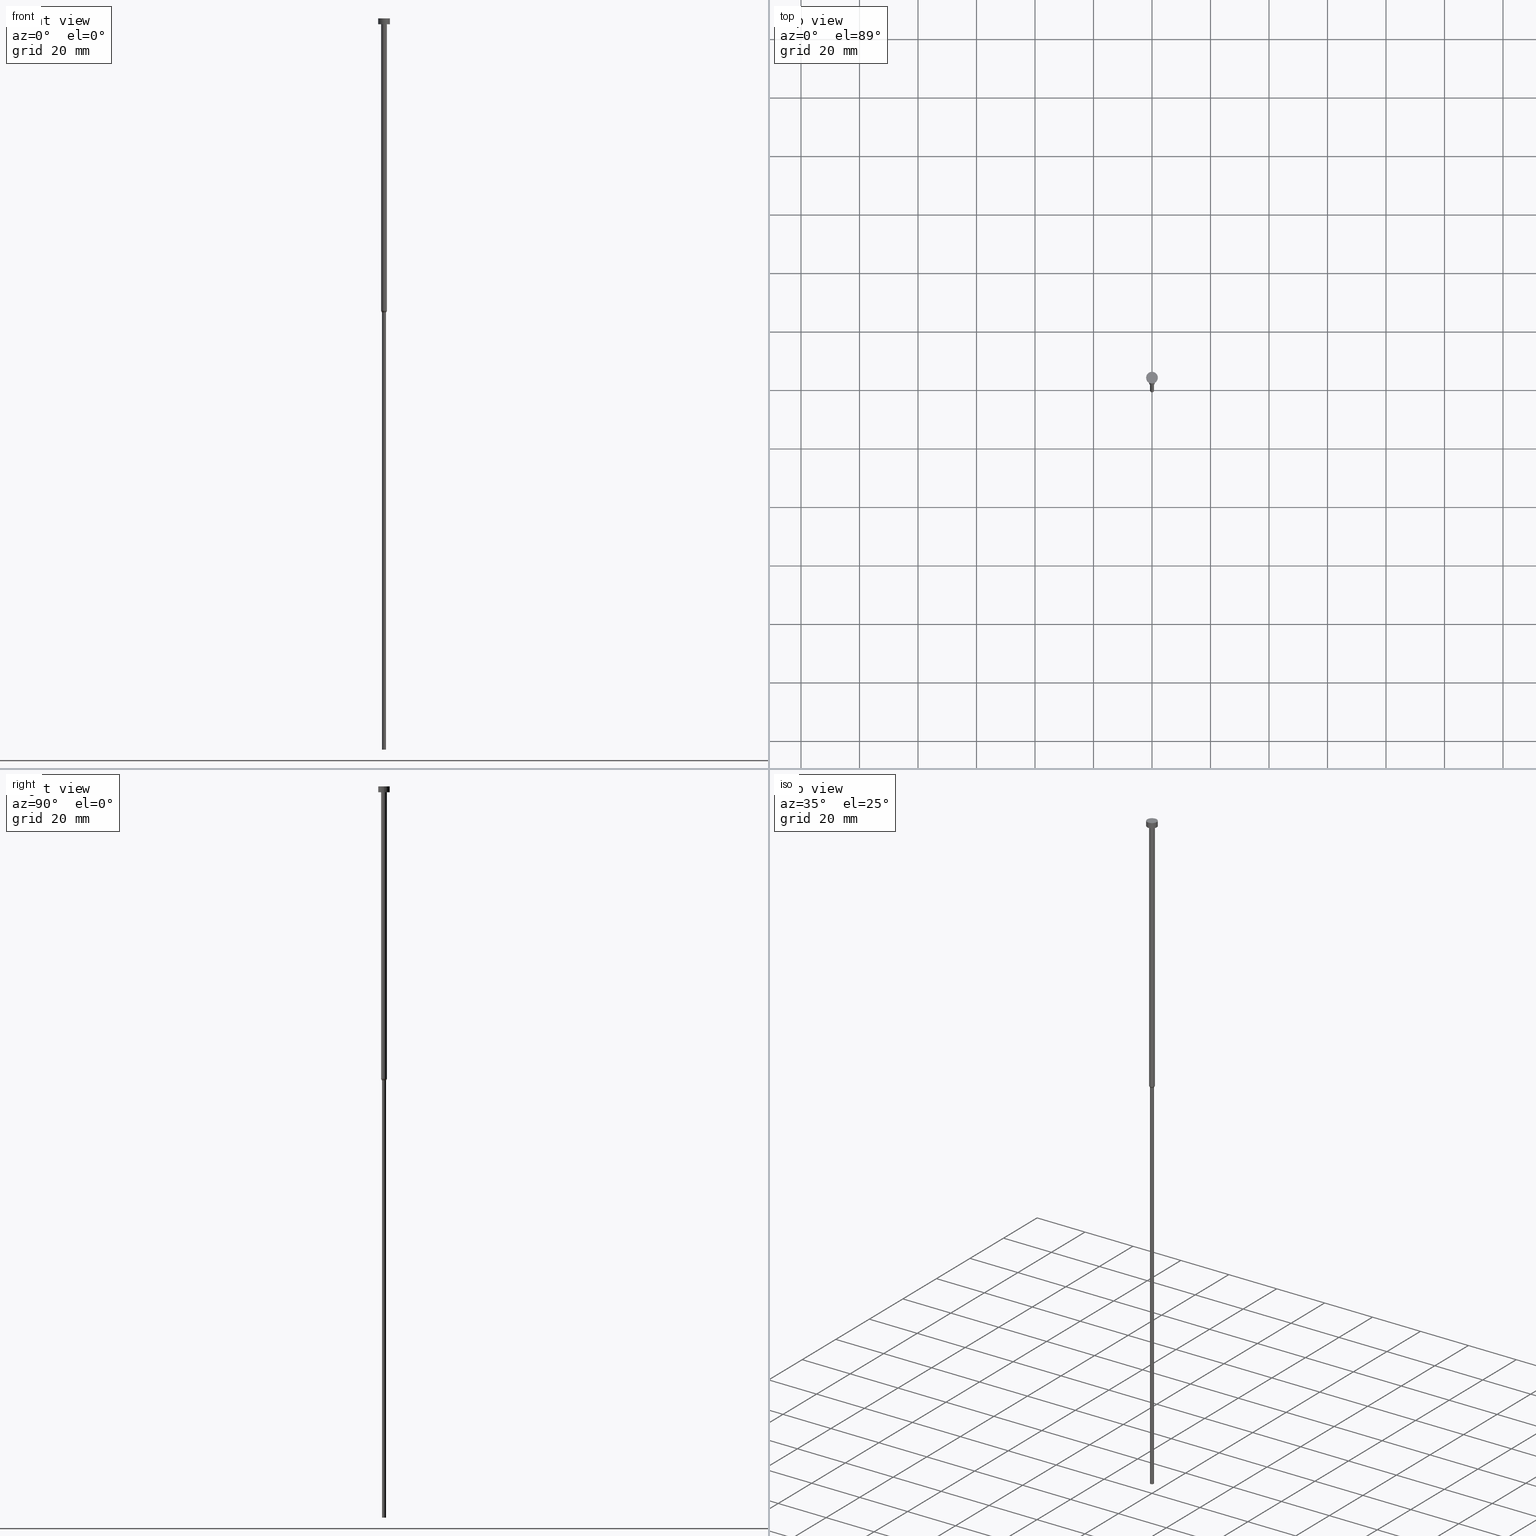
[diagram: canonical four-view strip — front | top / right | iso, engineering-drawing reading convention]
A machine part, canonical four-view strip (front | top / right | iso — engineering-drawing reading convention). The complete STEP part file that produces these views, byte-faithful:
ISO-10303-21;
HEADER;
FILE_DESCRIPTION (( 'STEP AP203' ),
    '1' );
FILE_NAME ('d667.STEP',
    '2023-02-13T10:57:26',
    ( '' ),
    ( '' ),
    'SwSTEP 2.0',
    'SolidWorks 2019',
    '' );
FILE_SCHEMA (( 'CONFIG_CONTROL_DESIGN' ));
ENDSEC;

DATA;
#1 = CIRCLE ( 'NONE', #339, 2.000000000000000000 ) ;
#2 = VERTEX_POINT ( 'NONE', #141 ) ;
#3 = CARTESIAN_POINT ( 'NONE',  ( 0.000000000000000000, 0.000000000000000000, -2.000000000000000444 ) ) ;
#4 = EDGE_CURVE ( 'NONE', #224, #287, #234, .T. ) ;
#5 = LINE ( 'NONE', #231, #17 ) ;
#6 = CC_DESIGN_DATE_AND_TIME_ASSIGNMENT ( #61, #288, ( #54 ) ) ;
#7 = EDGE_CURVE ( 'NONE', #2, #76, #5, .T. ) ;
#8 = FACE_OUTER_BOUND ( 'NONE', #274, .T. ) ;
#9 = AXIS2_PLACEMENT_3D ( 'NONE', #181, #16, #241 ) ;
#10 = PERSON_AND_ORGANIZATION ( #226, #161 ) ;
#11 = LOCAL_TIME ( 11, 57, 26.00000000000000000, #351 ) ;
#12 = ORIENTED_EDGE ( 'NONE', *, *, #7, .F. ) ;
#13 = DIRECTION ( 'NONE',  ( -0.000000000000000000, -0.000000000000000000, 1.000000000000000000 ) ) ;
#14 = EDGE_CURVE ( 'NONE', #57, #154, #233, .T. ) ;
#15 = SECURITY_CLASSIFICATION_LEVEL ( 'unclassified' ) ;
#16 = DIRECTION ( 'NONE',  ( -0.000000000000000000, -0.000000000000000000, 1.000000000000000000 ) ) ;
#17 = VECTOR ( 'NONE', #263, 1000.000000000000000 ) ;
#18 = CYLINDRICAL_SURFACE ( 'NONE', #261, 0.6999999999999998446 ) ;
#19 = AXIS2_PLACEMENT_3D ( 'NONE', #350, #155, #152 ) ;
#20 = CYLINDRICAL_SURFACE ( 'NONE', #168, 0.6999999999999998446 ) ;
#21 = ORIENTED_EDGE ( 'NONE', *, *, #299, .T. ) ;
#22 = CYLINDRICAL_SURFACE ( 'NONE', #19, 2.000000000000000000 ) ;
#23 = CYLINDRICAL_SURFACE ( 'NONE', #215, 1.000000000000003331 ) ;
#24 = CARTESIAN_POINT ( 'NONE',  ( 0.6999999999999998446, 0.000000000000000000, 0.000000000000000000 ) ) ;
#25 = DIRECTION ( 'NONE',  ( 1.000000000000000000, 0.000000000000000000, 0.000000000000000000 ) ) ;
#26 = ORIENTED_EDGE ( 'NONE', *, *, #235, .F. ) ;
#27 = AXIS2_PLACEMENT_3D ( 'NONE', #205, #316, #60 ) ;
#28 = DIRECTION ( 'NONE',  ( 0.000000000000000000, -0.000000000000000000, 1.000000000000000000 ) ) ;
#29 = DIRECTION ( 'NONE',  ( 1.000000000000000000, 0.000000000000000000, 0.000000000000000000 ) ) ;
#30 = CIRCLE ( 'NONE', #217, 1.000000000000003553 ) ;
#31 = ORIENTED_EDGE ( 'NONE', *, *, #91, .F. ) ;
#32 = DIRECTION ( 'NONE',  ( 1.000000000000000000, 0.000000000000000000, 0.000000000000000000 ) ) ;
#33 = DATE_AND_TIME ( #201, #345 ) ;
#34 = CC_DESIGN_APPROVAL ( #172, ( #244 ) ) ;
#35 = ADVANCED_FACE ( 'NONE', ( #320 ), #277, .T. ) ;
#36 = PERSON_AND_ORGANIZATION ( #226, #161 ) ;
#37 = APPROVAL_STATUS ( 'not_yet_approved' ) ;
#38 = CARTESIAN_POINT ( 'NONE',  ( -2.000000000000000000, 2.449293598294706414E-16, -2.449293598294705921E-16 ) ) ;
#39 = CARTESIAN_POINT ( 'NONE',  ( 0.000000000000000000, 0.000000000000000000, -250.0000000000000000 ) ) ;
#40 = CARTESIAN_POINT ( 'NONE',  ( 0.6999999999999998446, 0.000000000000000000, -250.0000000000000000 ) ) ;
#41 = VERTEX_POINT ( 'NONE', #40 ) ;
#42 = CARTESIAN_POINT ( 'NONE',  ( 2.000000000000000000, 0.000000000000000000, -2.000000000000000444 ) ) ;
#43 = DIRECTION ( 'NONE',  ( 1.000000000000000000, 0.000000000000000000, 0.000000000000000000 ) ) ;
#44 = ORIENTED_EDGE ( 'NONE', *, *, #296, .T. ) ;
#45 = DIRECTION ( 'NONE',  ( 1.000000000000000000, 0.000000000000000000, 0.000000000000000000 ) ) ;
#46 = CC_DESIGN_PERSON_AND_ORGANIZATION_ASSIGNMENT ( #113, #174, ( #54 ) ) ;
#47 = EDGE_LOOP ( 'NONE', ( #256, #262, #137, #12 ) ) ;
#48 = DIRECTION ( 'NONE',  ( -1.000000000000000000, 0.000000000000000000, -0.000000000000000000 ) ) ;
#49 = AXIS2_PLACEMENT_3D ( 'NONE', #39, #149, #115 ) ;
#50 =( NAMED_UNIT ( * ) SI_UNIT ( $, .STERADIAN. ) SOLID_ANGLE_UNIT ( ) );
#51 = CC_DESIGN_PERSON_AND_ORGANIZATION_ASSIGNMENT ( #214, #237, ( #244 ) ) ;
#52 = AXIS2_PLACEMENT_3D ( 'NONE', #325, #13, #66 ) ;
#53 =( LENGTH_UNIT ( ) NAMED_UNIT ( * ) SI_UNIT ( .MILLI., .METRE. ) );
#54 = SECURITY_CLASSIFICATION ( '', '', #15 ) ;
#55 = FACE_OUTER_BOUND ( 'NONE', #89, .T. ) ;
#56 = EDGE_CURVE ( 'NONE', #286, #76, #109, .T. ) ;
#57 = VERTEX_POINT ( 'NONE', #248 ) ;
#58 = ADVANCED_FACE ( 'NONE', ( #216 ), #353, .T. ) ;
#59 = AXIS2_PLACEMENT_3D ( 'NONE', #173, #146, #218 ) ;
#60 = DIRECTION ( 'NONE',  ( 1.000000000000000000, 0.000000000000000000, 0.000000000000000000 ) ) ;
#61 = DATE_AND_TIME ( #239, #265 ) ;
#62 = LOCAL_TIME ( 11, 57, 26.00000000000000000, #295 ) ;
#63 = FACE_OUTER_BOUND ( 'NONE', #77, .T. ) ;
#64 = PERSON_AND_ORGANIZATION ( #226, #161 ) ;
#65 = CYLINDRICAL_SURFACE ( 'NONE', #9, 2.000000000000000000 ) ;
#66 = DIRECTION ( 'NONE',  ( 1.000000000000000000, 0.000000000000000000, 0.000000000000000000 ) ) ;
#67 = CIRCLE ( 'NONE', #337, 0.6999999999999998446 ) ;
#68 = CARTESIAN_POINT ( 'NONE',  ( 0.000000000000000000, 0.000000000000000000, -100.0000000000000000 ) ) ;
#69 = DIRECTION ( 'NONE',  ( 1.000000000000000000, 0.000000000000000000, 0.000000000000000000 ) ) ;
#70 = ADVANCED_FACE ( 'NONE', ( #147 ), #23, .T. ) ;
#71 = APPROVAL_STATUS ( 'not_yet_approved' ) ;
#72 = ORIENTED_EDGE ( 'NONE', *, *, #230, .T. ) ;
#73 = CARTESIAN_POINT ( 'NONE',  ( 0.000000000000000000, 0.000000000000000000, 0.000000000000000000 ) ) ;
#74 = AXIS2_PLACEMENT_3D ( 'NONE', #78, #28, #336 ) ;
#75 = CARTESIAN_POINT ( 'NONE',  ( 0.000000000000000000, 0.000000000000000000, -2.449293598294705921E-16 ) ) ;
#76 = VERTEX_POINT ( 'NONE', #90 ) ;
#77 = EDGE_LOOP ( 'NONE', ( #179, #199, #304, #191 ) ) ;
#78 = CARTESIAN_POINT ( 'NONE',  ( 0.000000000000000000, 0.000000000000000000, -1.224646799147352961E-16 ) ) ;
#79 = ADVANCED_FACE ( 'NONE', ( #249, #354 ), #145, .T. ) ;
#80 = EDGE_LOOP ( 'NONE', ( #312, #167, #335, #170 ) ) ;
#81 = EDGE_CURVE ( 'NONE', #157, #194, #327, .T. ) ;
#82 = CC_DESIGN_PERSON_AND_ORGANIZATION_ASSIGNMENT ( #156, #355, ( #165 ) ) ;
#83 = CC_DESIGN_APPROVAL ( #321, ( #240 ) ) ;
#84 = LINE ( 'NONE', #207, #160 ) ;
#85 = ORIENTED_EDGE ( 'NONE', *, *, #296, .F. ) ;
#86 = CALENDAR_DATE ( 2023, 13, 2 ) ;
#87 = AXIS2_PLACEMENT_3D ( 'NONE', #101, #257, #136 ) ;
#88 = DIRECTION ( 'NONE',  ( -0.000000000000000000, -0.000000000000000000, 1.000000000000000000 ) ) ;
#89 = EDGE_LOOP ( 'NONE', ( #196, #31 ) ) ;
#90 = CARTESIAN_POINT ( 'NONE',  ( 1.000000000000003553, 0.000000000000000000, -2.000000000000000444 ) ) ;
#91 = EDGE_CURVE ( 'NONE', #184, #41, #258, .T. ) ;
#92 = PERSON_AND_ORGANIZATION_ROLE ( 'creator' ) ;
#93 = CC_DESIGN_SECURITY_CLASSIFICATION ( #54, ( #244 ) ) ;
#94 = EDGE_CURVE ( 'NONE', #208, #286, #118, .T. ) ;
#95 = PERSON_AND_ORGANIZATION ( #226, #161 ) ;
#96 = DIRECTION ( 'NONE',  ( 1.000000000000000000, 0.000000000000000000, 0.000000000000000000 ) ) ;
#97 = CARTESIAN_POINT ( 'NONE',  ( 0.000000000000000000, 0.000000000000000000, -100.0000000000000000 ) ) ;
#98 = AXIS2_PLACEMENT_3D ( 'NONE', #324, #300, #349 ) ;
#99 = AXIS2_PLACEMENT_3D ( 'NONE', #283, #102, #48 ) ;
#100 = ADVANCED_FACE ( 'NONE', ( #238 ), #65, .T. ) ;
#101 = CARTESIAN_POINT ( 'NONE',  ( 0.000000000000000000, 0.000000000000000000, -2.449293598294705921E-16 ) ) ;
#102 = DIRECTION ( 'NONE',  ( 0.000000000000000000, 0.000000000000000000, -1.000000000000000000 ) ) ;
#103 = CC_DESIGN_PERSON_AND_ORGANIZATION_ASSIGNMENT ( #313, #169, ( #240 ) ) ;
#104 = DIRECTION ( 'NONE',  ( 1.000000000000000000, 0.000000000000000000, 0.000000000000000000 ) ) ;
#105 = CIRCLE ( 'NONE', #87, 2.000000000000000000 ) ;
#106 = DIRECTION ( 'NONE',  ( -0.000000000000000000, -0.000000000000000000, 1.000000000000000000 ) ) ;
#107 = CC_DESIGN_PERSON_AND_ORGANIZATION_ASSIGNMENT ( #36, #92, ( #244 ) ) ;
#108 = ORIENTED_EDGE ( 'NONE', *, *, #329, .F. ) ;
#109 = CIRCLE ( 'NONE', #200, 1.000000000000003553 ) ;
#110 = COORDINATED_UNIVERSAL_TIME_OFFSET ( 1, 0, .AHEAD. ) ;
#111 = ORIENTED_EDGE ( 'NONE', *, *, #94, .F. ) ;
#112 = CONICAL_SURFACE ( 'NONE', #59, 1.000000000000003109, 0.5235987755983152470 ) ;
#113 = PERSON_AND_ORGANIZATION ( #226, #161 ) ;
#114 = ORIENTED_EDGE ( 'NONE', *, *, #4, .F. ) ;
#115 = DIRECTION ( 'NONE',  ( 1.000000000000000000, 0.000000000000000000, 0.000000000000000000 ) ) ;
#116 = DATE_TIME_ROLE ( 'creation_date' ) ;
#117 = UNCERTAINTY_MEASURE_WITH_UNIT (LENGTH_MEASURE( 1.000000000000000082E-05 ), #53, 'distance_accuracy_value', 'NONE');
#118 = LINE ( 'NONE', #210, #193 ) ;
#119 = COORDINATED_UNIVERSAL_TIME_OFFSET ( 1, 0, .AHEAD. ) ;
#120 = VECTOR ( 'NONE', #106, 1000.000000000000000 ) ;
#121 = CARTESIAN_POINT ( 'NONE',  ( 0.000000000000000000, -2.000000000000000000, -2.000000000000000444 ) ) ;
#122 = ORIENTED_EDGE ( 'NONE', *, *, #81, .F. ) ;
#123 = CARTESIAN_POINT ( 'NONE',  ( 0.000000000000000000, 0.000000000000000000, 0.000000000000000000 ) ) ;
#124 = ORIENTED_EDGE ( 'NONE', *, *, #294, .T. ) ;
#125 = APPLICATION_PROTOCOL_DEFINITION ( 'international standard', 'config_control_design', 1994, #140 ) ;
#126 = DESIGN_CONTEXT ( 'detailed design', #307, 'design' ) ;
#127 = DIRECTION ( 'NONE',  ( -0.000000000000000000, -0.000000000000000000, 1.000000000000000000 ) ) ;
#128 = DIRECTION ( 'NONE',  ( -0.000000000000000000, -0.000000000000000000, 1.000000000000000000 ) ) ;
#129 = CIRCLE ( 'NONE', #27, 1.000000000000003109 ) ;
#130 = CARTESIAN_POINT ( 'NONE',  ( 0.000000000000000000, 0.000000000000000000, 0.000000000000000000 ) ) ;
#131 = ORIENTED_EDGE ( 'NONE', *, *, #206, .F. ) ;
#132 = FACE_OUTER_BOUND ( 'NONE', #203, .T. ) ;
#133 = ORIENTED_EDGE ( 'NONE', *, *, #56, .F. ) ;
#134 = LOCAL_TIME ( 11, 57, 26.00000000000000000, #110 ) ;
#135 = MANIFOLD_SOLID_BREP ( 'Rotovat1', #268 ) ;
#136 = DIRECTION ( 'NONE',  ( 1.000000000000000000, 0.000000000000000000, 0.000000000000000000 ) ) ;
#137 = ORIENTED_EDGE ( 'NONE', *, *, #230, .F. ) ;
#138 = CARTESIAN_POINT ( 'NONE',  ( 0.000000000000000000, 0.000000000000000000, -100.5196152422706604 ) ) ;
#139 = PLANE ( 'NONE',  #74 ) ;
#140 = APPLICATION_CONTEXT ( 'configuration controlled 3d designs of mechanical parts and assemblies' ) ;
#141 = CARTESIAN_POINT ( 'NONE',  ( 1.000000000000003109, 0.000000000000000000, -100.0000000000000000 ) ) ;
#142 = EDGE_CURVE ( 'NONE', #184, #194, #84, .T. ) ;
#143 = CIRCLE ( 'NONE', #271, 2.000000000000000000 ) ;
#144 = DATE_AND_TIME ( #86, #62 ) ;
#145 = PLANE ( 'NONE',  #232 ) ;
#146 = DIRECTION ( 'NONE',  ( -0.000000000000000000, -0.000000000000000000, 1.000000000000000000 ) ) ;
#147 = FACE_OUTER_BOUND ( 'NONE', #47, .T. ) ;
#148 = ADVANCED_FACE ( 'NONE', ( #63 ), #20, .T. ) ;
#149 = DIRECTION ( 'NONE',  ( -0.000000000000000000, -0.000000000000000000, 1.000000000000000000 ) ) ;
#150 = CARTESIAN_POINT ( 'NONE',  ( 0.000000000000000000, 0.000000000000000000, -2.000000000000000444 ) ) ;
#151 = ORIENTED_EDGE ( 'NONE', *, *, #142, .T. ) ;
#152 = DIRECTION ( 'NONE',  ( 1.000000000000000000, 0.000000000000000000, 0.000000000000000000 ) ) ;
#153 = CIRCLE ( 'NONE', #228, 2.000000000000000000 ) ;
#154 = VERTEX_POINT ( 'NONE', #38 ) ;
#155 = DIRECTION ( 'NONE',  ( -0.000000000000000000, -0.000000000000000000, 1.000000000000000000 ) ) ;
#156 = PERSON_AND_ORGANIZATION ( #226, #161 ) ;
#157 = VERTEX_POINT ( 'NONE', #177 ) ;
#158 = EDGE_CURVE ( 'NONE', #41, #184, #314, .T. ) ;
#159 = AXIS2_PLACEMENT_3D ( 'NONE', #68, #303, #43 ) ;
#160 = VECTOR ( 'NONE', #178, 1000.000000000000000 ) ;
#161 = ORGANIZATION ( 'NEUR�EN�', 'NEUR�EN�', '' ) ;
#162 = ORIENTED_EDGE ( 'NONE', *, *, #164, .F. ) ;
#163 = DIRECTION ( 'NONE',  ( 1.000000000000000000, 0.000000000000000000, 0.000000000000000000 ) ) ;
#164 = EDGE_CURVE ( 'NONE', #208, #2, #129, .T. ) ;
#165 = PRODUCT ( 'd667', 'd667', '', ( #330 ) ) ;
#166 = DIRECTION ( 'NONE',  ( 0.5000000000000140998, 0.000000000000000000, 0.8660254037844303809 ) ) ;
#167 = ORIENTED_EDGE ( 'NONE', *, *, #329, .T. ) ;
#168 = AXIS2_PLACEMENT_3D ( 'NONE', #123, #175, #292 ) ;
#169 = PERSON_AND_ORGANIZATION_ROLE ( 'creator' ) ;
#170 = ORIENTED_EDGE ( 'NONE', *, *, #299, .F. ) ;
#171 = ADVANCED_BREP_SHAPE_REPRESENTATION ( 'd667', ( #135, #328 ), #309 ) ;
#172 = APPROVAL ( #37, 'NEUR�EN�' ) ;
#173 = CARTESIAN_POINT ( 'NONE',  ( 0.000000000000000000, 0.000000000000000000, -100.0000000000000000 ) ) ;
#174 = PERSON_AND_ORGANIZATION_ROLE ( 'classification_officer' ) ;
#175 = DIRECTION ( 'NONE',  ( -0.000000000000000000, -0.000000000000000000, 1.000000000000000000 ) ) ;
#176 = EDGE_LOOP ( 'NONE', ( #26, #108 ) ) ;
#177 = CARTESIAN_POINT ( 'NONE',  ( 0.6999999999999998446, 0.000000000000000000, -100.5196152422706604 ) ) ;
#178 = DIRECTION ( 'NONE',  ( -0.000000000000000000, -0.000000000000000000, 1.000000000000000000 ) ) ;
#179 = ORIENTED_EDGE ( 'NONE', *, *, #142, .F. ) ;
#180 = FACE_OUTER_BOUND ( 'NONE', #254, .T. ) ;
#181 = CARTESIAN_POINT ( 'NONE',  ( 0.000000000000000000, 0.000000000000000000, 0.000000000000000000 ) ) ;
#182 = CARTESIAN_POINT ( 'NONE',  ( -1.000000000000003109, 1.224646799147356905E-16, -100.0000000000000000 ) ) ;
#183 = EDGE_LOOP ( 'NONE', ( #111, #211, #343, #133 ) ) ;
#184 = VERTEX_POINT ( 'NONE', #264 ) ;
#185 = CARTESIAN_POINT ( 'NONE',  ( -1.000000000000003553, 1.224646799147357398E-16, -2.000000000000000444 ) ) ;
#186 = APPROVAL_ROLE ( '' ) ;
#187 = ADVANCED_FACE ( 'NONE', ( #8 ), #112, .T. ) ;
#188 = FACE_OUTER_BOUND ( 'NONE', #293, .T. ) ;
#189 = CARTESIAN_POINT ( 'NONE',  ( -1.000000000000003109, 1.224646799147356905E-16, -100.0000000000000000 ) ) ;
#190 = APPROVAL_PERSON_ORGANIZATION ( #10, #172, #247 ) ;
#191 = ORIENTED_EDGE ( 'NONE', *, *, #294, .F. ) ;
#192 = CARTESIAN_POINT ( 'NONE',  ( 2.000000000000000000, 0.000000000000000000, -2.449293598294705921E-16 ) ) ;
#193 = VECTOR ( 'NONE', #342, 1000.000000000000000 ) ;
#194 = VERTEX_POINT ( 'NONE', #279 ) ;
#195 = LINE ( 'NONE', #311, #323 ) ;
#196 = ORIENTED_EDGE ( 'NONE', *, *, #158, .F. ) ;
#197 = APPROVAL_DATE_TIME ( #33, #321 ) ;
#198 = ADVANCED_FACE ( 'NONE', ( #132 ), #18, .T. ) ;
#199 = ORIENTED_EDGE ( 'NONE', *, *, #91, .T. ) ;
#200 = AXIS2_PLACEMENT_3D ( 'NONE', #150, #289, #273 ) ;
#201 = CALENDAR_DATE ( 2023, 13, 2 ) ;
#202 = CALENDAR_DATE ( 2023, 13, 2 ) ;
#203 = EDGE_LOOP ( 'NONE', ( #242, #151, #122, #317 ) ) ;
#204 = AXIS2_PLACEMENT_3D ( 'NONE', #212, #88, #270 ) ;
#205 = CARTESIAN_POINT ( 'NONE',  ( 0.000000000000000000, 0.000000000000000000, -100.0000000000000000 ) ) ;
#206 = EDGE_CURVE ( 'NONE', #194, #208, #348, .T. ) ;
#207 = CARTESIAN_POINT ( 'NONE',  ( -0.6999999999999998446, 8.572527594031470725E-17, 0.000000000000000000 ) ) ;
#208 = VERTEX_POINT ( 'NONE', #182 ) ;
#209 = APPROVAL_DATE_TIME ( #144, #326 ) ;
#210 = CARTESIAN_POINT ( 'NONE',  ( -1.000000000000003331, 1.224646799147357151E-16, 0.000000000000000000 ) ) ;
#211 = ORIENTED_EDGE ( 'NONE', *, *, #164, .T. ) ;
#212 = CARTESIAN_POINT ( 'NONE',  ( 0.000000000000000000, 0.000000000000000000, -100.5196152422706604 ) ) ;
#213 = DIRECTION ( 'NONE',  ( -0.000000000000000000, -0.000000000000000000, 1.000000000000000000 ) ) ;
#214 = PERSON_AND_ORGANIZATION ( #226, #161 ) ;
#215 = AXIS2_PLACEMENT_3D ( 'NONE', #297, #127, #322 ) ;
#216 = FACE_OUTER_BOUND ( 'NONE', #346, .T. ) ;
#217 = AXIS2_PLACEMENT_3D ( 'NONE', #275, #213, #69 ) ;
#218 = DIRECTION ( 'NONE',  ( 1.000000000000000000, 0.000000000000000000, 0.000000000000000000 ) ) ;
#219 = PRODUCT_RELATED_PRODUCT_CATEGORY ( 'detail', '', ( #165 ) ) ;
#220 = APPLICATION_PROTOCOL_DEFINITION ( 'international standard', 'config_control_design', 1994, #307 ) ;
#221 = ORIENTED_EDGE ( 'NONE', *, *, #332, .F. ) ;
#222 = VECTOR ( 'NONE', #340, 1000.000000000000000 ) ;
#223 = CIRCLE ( 'NONE', #281, 1.000000000000003109 ) ;
#224 = VERTEX_POINT ( 'NONE', #42 ) ;
#225 = PLANE ( 'NONE',  #99 ) ;
#226 = PERSON ( 'NEUR�EN�', 'NEUR�EN�', 'NEUR�EN�', ('NEUR�EN�'), ('NEUR�EN�'), ('NEUR�EN�') ) ;
#227 = DIRECTION ( 'NONE',  ( -0.000000000000000000, -0.000000000000000000, 1.000000000000000000 ) ) ;
#228 = AXIS2_PLACEMENT_3D ( 'NONE', #3, #227, #32 ) ;
#229 = CARTESIAN_POINT ( 'NONE',  ( -2.000000000000000000, 2.449293598294706414E-16, 0.000000000000000000 ) ) ;
#230 = EDGE_CURVE ( 'NONE', #76, #286, #30, .T. ) ;
#231 = CARTESIAN_POINT ( 'NONE',  ( 1.000000000000003331, 0.000000000000000000, 0.000000000000000000 ) ) ;
#232 = AXIS2_PLACEMENT_3D ( 'NONE', #121, #266, #267 ) ;
#233 = LINE ( 'NONE', #229, #222 ) ;
#234 = LINE ( 'NONE', #259, #120 ) ;
#235 = EDGE_CURVE ( 'NONE', #224, #57, #143, .T. ) ;
#236 = ADVANCED_FACE ( 'NONE', ( #180 ), #22, .T. ) ;
#237 = PERSON_AND_ORGANIZATION_ROLE ( 'design_supplier' ) ;
#238 = FACE_OUTER_BOUND ( 'NONE', #80, .T. ) ;
#239 = CALENDAR_DATE ( 2023, 13, 2 ) ;
#240 = PRODUCT_DEFINITION ( 'NEZN�M�', '', #244, #126 ) ;
#241 = DIRECTION ( 'NONE',  ( 1.000000000000000000, 0.000000000000000000, 0.000000000000000000 ) ) ;
#242 = ORIENTED_EDGE ( 'NONE', *, *, #158, .T. ) ;
#243 = VECTOR ( 'NONE', #308, 1000.000000000000114 ) ;
#244 = PRODUCT_DEFINITION_FORMATION_WITH_SPECIFIED_SOURCE ( 'LIBOVOLN�', '', #165, .NOT_KNOWN. ) ;
#245 = SHAPE_DEFINITION_REPRESENTATION ( #252, #171 ) ;
#246 = ORIENTED_EDGE ( 'NONE', *, *, #319, .F. ) ;
#247 = APPROVAL_ROLE ( '' ) ;
#248 = CARTESIAN_POINT ( 'NONE',  ( -2.000000000000000000, 2.449293598294706414E-16, -2.000000000000000444 ) ) ;
#249 = FACE_BOUND ( 'NONE', #282, .T. ) ;
#250 = DIRECTION ( 'NONE',  ( 0.000000000000000000, 0.000000000000000000, 1.000000000000000000 ) ) ;
#251 = ORIENTED_EDGE ( 'NONE', *, *, #56, .T. ) ;
#252 = PRODUCT_DEFINITION_SHAPE ( 'NONE', 'NONE',  #240 ) ;
#253 = DIRECTION ( 'NONE',  ( -0.000000000000000000, -0.000000000000000000, 1.000000000000000000 ) ) ;
#254 = EDGE_LOOP ( 'NONE', ( #306, #331, #221, #114 ) ) ;
#255 = APPROVAL_PERSON_ORGANIZATION ( #95, #321, #186 ) ;
#256 = ORIENTED_EDGE ( 'NONE', *, *, #319, .T. ) ;
#257 = DIRECTION ( 'NONE',  ( -0.000000000000000000, -0.000000000000000000, 1.000000000000000000 ) ) ;
#258 = CIRCLE ( 'NONE', #52, 0.6999999999999998446 ) ;
#259 = CARTESIAN_POINT ( 'NONE',  ( 2.000000000000000000, 0.000000000000000000, 0.000000000000000000 ) ) ;
#260 =( NAMED_UNIT ( * ) PLANE_ANGLE_UNIT ( ) SI_UNIT ( $, .RADIAN. ) );
#261 = AXIS2_PLACEMENT_3D ( 'NONE', #73, #253, #96 ) ;
#262 = ORIENTED_EDGE ( 'NONE', *, *, #94, .T. ) ;
#263 = DIRECTION ( 'NONE',  ( -0.000000000000000000, -0.000000000000000000, 1.000000000000000000 ) ) ;
#264 = CARTESIAN_POINT ( 'NONE',  ( -0.6999999999999998446, 8.572527594031470725E-17, -250.0000000000000000 ) ) ;
#265 = LOCAL_TIME ( 11, 57, 26.00000000000000000, #119 ) ;
#266 = DIRECTION ( 'NONE',  ( 0.000000000000000000, 0.000000000000000000, -1.000000000000000000 ) ) ;
#267 = DIRECTION ( 'NONE',  ( -1.000000000000000000, 0.000000000000000000, -0.000000000000000000 ) ) ;
#268 = CLOSED_SHELL ( 'NONE', ( #236, #70, #187, #198, #302, #148, #58, #35, #79, #100, #352 ) ) ;
#269 = APPROVAL_DATE_TIME ( #318, #172 ) ;
#270 = DIRECTION ( 'NONE',  ( 1.000000000000000000, 0.000000000000000000, 0.000000000000000000 ) ) ;
#271 = AXIS2_PLACEMENT_3D ( 'NONE', #305, #347, #45 ) ;
#272 = DATE_AND_TIME ( #202, #134 ) ;
#273 = DIRECTION ( 'NONE',  ( 1.000000000000000000, 0.000000000000000000, 0.000000000000000000 ) ) ;
#274 = EDGE_LOOP ( 'NONE', ( #315, #298, #246, #85 ) ) ;
#275 = CARTESIAN_POINT ( 'NONE',  ( 0.000000000000000000, 0.000000000000000000, -2.000000000000000444 ) ) ;
#276 = CC_DESIGN_DATE_AND_TIME_ASSIGNMENT ( #272, #116, ( #240 ) ) ;
#277 = CYLINDRICAL_SURFACE ( 'NONE', #98, 1.000000000000003331 ) ;
#278 = LINE ( 'NONE', #24, #301 ) ;
#279 = CARTESIAN_POINT ( 'NONE',  ( -0.6999999999999998446, 8.572527594031470725E-17, -100.5196152422706604 ) ) ;
#280 = DIRECTION ( 'NONE',  ( -0.000000000000000000, -0.000000000000000000, 1.000000000000000000 ) ) ;
#281 = AXIS2_PLACEMENT_3D ( 'NONE', #97, #333, #163 ) ;
#282 = EDGE_LOOP ( 'NONE', ( #72, #251 ) ) ;
#283 = CARTESIAN_POINT ( 'NONE',  ( 0.000000000000000000, 0.000000000000000000, -250.0000000000000000 ) ) ;
#284 = EDGE_CURVE ( 'NONE', #41, #157, #278, .T. ) ;
#285 = APPROVAL_PERSON_ORGANIZATION ( #64, #326, #344 ) ;
#286 = VERTEX_POINT ( 'NONE', #185 ) ;
#287 = VERTEX_POINT ( 'NONE', #192 ) ;
#288 = DATE_TIME_ROLE ( 'classification_date' ) ;
#289 = DIRECTION ( 'NONE',  ( -0.000000000000000000, -0.000000000000000000, 1.000000000000000000 ) ) ;
#290 = CC_DESIGN_APPROVAL ( #326, ( #54 ) ) ;
#291 = CALENDAR_DATE ( 2023, 13, 2 ) ;
#292 = DIRECTION ( 'NONE',  ( 1.000000000000000000, 0.000000000000000000, 0.000000000000000000 ) ) ;
#293 = EDGE_LOOP ( 'NONE', ( #338, #21 ) ) ;
#294 = EDGE_CURVE ( 'NONE', #194, #157, #67, .T. ) ;
#295 = COORDINATED_UNIVERSAL_TIME_OFFSET ( 1, 0, .AHEAD. ) ;
#296 = EDGE_CURVE ( 'NONE', #157, #2, #195, .T. ) ;
#297 = CARTESIAN_POINT ( 'NONE',  ( 0.000000000000000000, 0.000000000000000000, 0.000000000000000000 ) ) ;
#298 = ORIENTED_EDGE ( 'NONE', *, *, #206, .T. ) ;
#299 = EDGE_CURVE ( 'NONE', #154, #287, #105, .T. ) ;
#300 = DIRECTION ( 'NONE',  ( -0.000000000000000000, -0.000000000000000000, 1.000000000000000000 ) ) ;
#301 = VECTOR ( 'NONE', #128, 1000.000000000000000 ) ;
#302 = ADVANCED_FACE ( 'NONE', ( #55 ), #225, .T. ) ;
#303 = DIRECTION ( 'NONE',  ( -0.000000000000000000, -0.000000000000000000, 1.000000000000000000 ) ) ;
#304 = ORIENTED_EDGE ( 'NONE', *, *, #284, .T. ) ;
#305 = CARTESIAN_POINT ( 'NONE',  ( 0.000000000000000000, 0.000000000000000000, -2.000000000000000444 ) ) ;
#306 = ORIENTED_EDGE ( 'NONE', *, *, #235, .T. ) ;
#307 = APPLICATION_CONTEXT ( 'configuration controlled 3d designs of mechanical parts and assemblies' ) ;
#308 = DIRECTION ( 'NONE',  ( -0.5000000000000140998, 6.123233995736939832E-17, 0.8660254037844303809 ) ) ;
#309 =( GEOMETRIC_REPRESENTATION_CONTEXT ( 3 ) GLOBAL_UNCERTAINTY_ASSIGNED_CONTEXT ( ( #117 ) ) GLOBAL_UNIT_ASSIGNED_CONTEXT ( ( #53, #260, #50 ) ) REPRESENTATION_CONTEXT ( 'NONE', 'WORKASPACE' ) );
#310 = COORDINATED_UNIVERSAL_TIME_OFFSET ( 1, 0, .AHEAD. ) ;
#311 = CARTESIAN_POINT ( 'NONE',  ( 1.000000000000003109, 0.000000000000000000, -100.0000000000000000 ) ) ;
#312 = ORIENTED_EDGE ( 'NONE', *, *, #14, .F. ) ;
#313 = PERSON_AND_ORGANIZATION ( #226, #161 ) ;
#314 = CIRCLE ( 'NONE', #49, 0.6999999999999998446 ) ;
#315 = ORIENTED_EDGE ( 'NONE', *, *, #81, .T. ) ;
#316 = DIRECTION ( 'NONE',  ( -0.000000000000000000, -0.000000000000000000, 1.000000000000000000 ) ) ;
#317 = ORIENTED_EDGE ( 'NONE', *, *, #284, .F. ) ;
#318 = DATE_AND_TIME ( #291, #11 ) ;
#319 = EDGE_CURVE ( 'NONE', #2, #208, #223, .T. ) ;
#320 = FACE_OUTER_BOUND ( 'NONE', #183, .T. ) ;
#321 = APPROVAL ( #71, 'NEUR�EN�' ) ;
#322 = DIRECTION ( 'NONE',  ( 1.000000000000000000, 0.000000000000000000, 0.000000000000000000 ) ) ;
#323 = VECTOR ( 'NONE', #166, 1000.000000000000114 ) ;
#324 = CARTESIAN_POINT ( 'NONE',  ( 0.000000000000000000, 0.000000000000000000, 0.000000000000000000 ) ) ;
#325 = CARTESIAN_POINT ( 'NONE',  ( 0.000000000000000000, 0.000000000000000000, -250.0000000000000000 ) ) ;
#326 = APPROVAL ( #341, 'NEUR�EN�' ) ;
#327 = CIRCLE ( 'NONE', #204, 0.6999999999999998446 ) ;
#328 = AXIS2_PLACEMENT_3D ( 'NONE', #130, #250, #25 ) ;
#329 = EDGE_CURVE ( 'NONE', #57, #224, #153, .T. ) ;
#330 = MECHANICAL_CONTEXT ( 'NONE', #140, 'mechanical' ) ;
#331 = ORIENTED_EDGE ( 'NONE', *, *, #14, .T. ) ;
#332 = EDGE_CURVE ( 'NONE', #287, #154, #1, .T. ) ;
#333 = DIRECTION ( 'NONE',  ( -0.000000000000000000, -0.000000000000000000, 1.000000000000000000 ) ) ;
#334 = DIRECTION ( 'NONE',  ( -0.000000000000000000, -0.000000000000000000, 1.000000000000000000 ) ) ;
#335 = ORIENTED_EDGE ( 'NONE', *, *, #4, .T. ) ;
#336 = DIRECTION ( 'NONE',  ( 1.000000000000000000, 0.000000000000000000, 0.000000000000000000 ) ) ;
#337 = AXIS2_PLACEMENT_3D ( 'NONE', #138, #280, #29 ) ;
#338 = ORIENTED_EDGE ( 'NONE', *, *, #332, .T. ) ;
#339 = AXIS2_PLACEMENT_3D ( 'NONE', #75, #334, #104 ) ;
#340 = DIRECTION ( 'NONE',  ( -0.000000000000000000, -0.000000000000000000, 1.000000000000000000 ) ) ;
#341 = APPROVAL_STATUS ( 'not_yet_approved' ) ;
#342 = DIRECTION ( 'NONE',  ( -0.000000000000000000, -0.000000000000000000, 1.000000000000000000 ) ) ;
#343 = ORIENTED_EDGE ( 'NONE', *, *, #7, .T. ) ;
#344 = APPROVAL_ROLE ( '' ) ;
#345 = LOCAL_TIME ( 11, 57, 26.00000000000000000, #310 ) ;
#346 = EDGE_LOOP ( 'NONE', ( #131, #124, #44, #162 ) ) ;
#347 = DIRECTION ( 'NONE',  ( -0.000000000000000000, -0.000000000000000000, 1.000000000000000000 ) ) ;
#348 = LINE ( 'NONE', #189, #243 ) ;
#349 = DIRECTION ( 'NONE',  ( 1.000000000000000000, 0.000000000000000000, 0.000000000000000000 ) ) ;
#350 = CARTESIAN_POINT ( 'NONE',  ( 0.000000000000000000, 0.000000000000000000, 0.000000000000000000 ) ) ;
#351 = COORDINATED_UNIVERSAL_TIME_OFFSET ( 1, 0, .AHEAD. ) ;
#352 = ADVANCED_FACE ( 'NONE', ( #188 ), #139, .T. ) ;
#353 = CONICAL_SURFACE ( 'NONE', #159, 1.000000000000003109, 0.5235987755983152470 ) ;
#354 = FACE_OUTER_BOUND ( 'NONE', #176, .T. ) ;
#355 = PERSON_AND_ORGANIZATION_ROLE ( 'design_owner' ) ;
ENDSEC;
END-ISO-10303-21;
